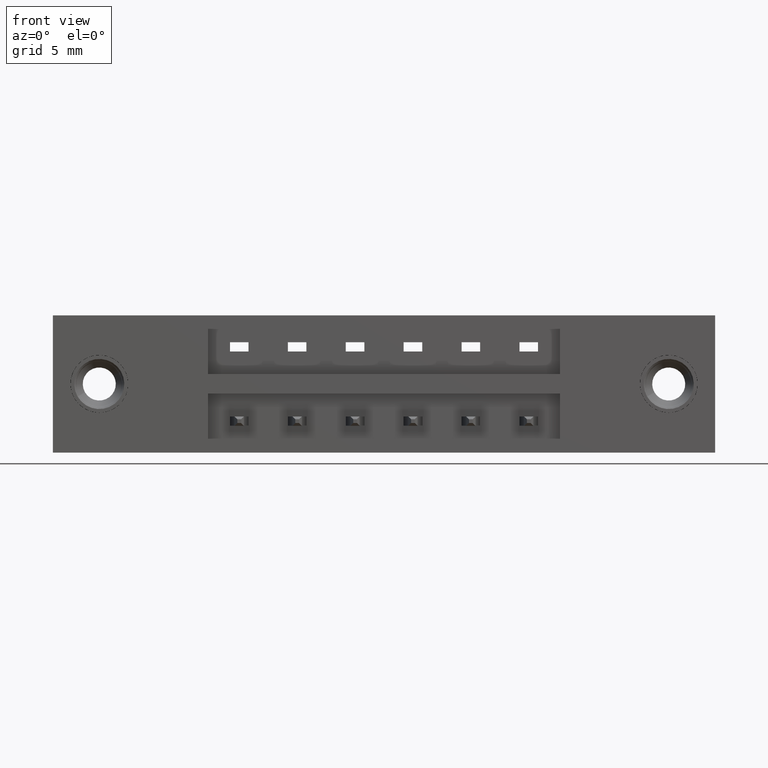
[diagram: clean part render]
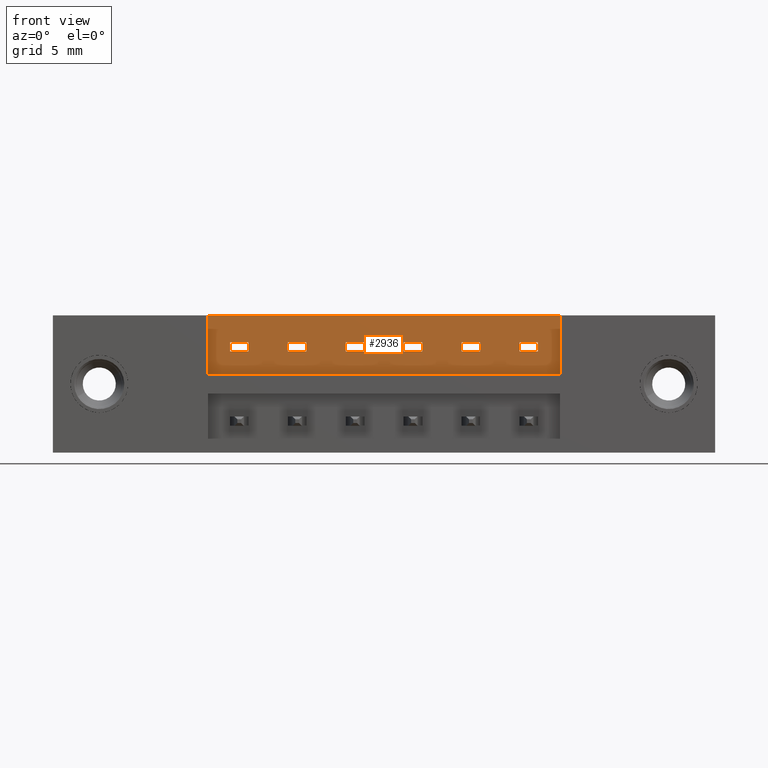
[diagram: same view with one face highlighted and labeled with its STEP entity id]
A machine part, front view. The second image highlights one B-rep face of the part: STEP entity #2936.
In plain terms, the highlighted planar face has unit normal (0, 1, 0).
Its self-contained STEP definition (entity closure, byte-faithful):
#14 = LINE ( 'NONE', #127, #7635 ) ;
#72 = ORIENTED_EDGE ( 'NONE', *, *, #3680, .T. ) ;
#105 = CARTESIAN_POINT ( 'NONE',  ( 0.6329999999999999000, 0.04999999999999998900, -0.07250000000000002300 ) ) ;
#111 = CARTESIAN_POINT ( 'NONE',  ( 1.256999999999999700, 0.04999999999999998900, -0.07250000000000002300 ) ) ;
#124 = DIRECTION ( 'NONE',  ( 0.0000000000000000000, 0.0000000000000000000, 1.000000000000000000 ) ) ;
#127 = CARTESIAN_POINT ( 'NONE',  ( 1.306999999999999700, 0.05000000000000000300, 0.0000000000000000000 ) ) ;
#180 = DIRECTION ( 'NONE',  ( 0.0000000000000000000, 0.0000000000000000000, 1.000000000000000000 ) ) ;
#183 = ORIENTED_EDGE ( 'NONE', *, *, #3490, .T. ) ;
#259 = VERTEX_POINT ( 'NONE', #8237 ) ;
#262 = VERTEX_POINT ( 'NONE', #6803 ) ;
#326 = ORIENTED_EDGE ( 'NONE', *, *, #6832, .T. ) ;
#365 = CARTESIAN_POINT ( 'NONE',  ( 1.366499999999999800, 0.05000000000000000300, 0.0000000000000000000 ) ) ;
#373 = DIRECTION ( 'NONE',  ( -1.000000000000000000, 0.0000000000000000000, 0.0000000000000000000 ) ) ;
#439 = ORIENTED_EDGE ( 'NONE', *, *, #5299, .T. ) ;
#529 = CARTESIAN_POINT ( 'NONE',  ( 1.151000000000000000, 0.04999999999999998900, -0.07250000000000002300 ) ) ;
#556 = ORIENTED_EDGE ( 'NONE', *, *, #5755, .T. ) ;
#563 = EDGE_CURVE ( 'NONE', #3507, #9533, #762, .T. ) ;
#613 = FACE_BOUND ( 'NONE', #9147, .T. ) ;
#623 = ORIENTED_EDGE ( 'NONE', *, *, #9014, .T. ) ;
#693 = VERTEX_POINT ( 'NONE', #529 ) ;
#698 = VECTOR ( 'NONE', #373, 39.37007874015748100 ) ;
#707 = LINE ( 'NONE', #9453, #2683 ) ;
#712 = CARTESIAN_POINT ( 'NONE',  ( 0.5269999999999999100, 0.05000000000000000300, -0.09750000000000011400 ) ) ;
#746 = EDGE_CURVE ( 'NONE', #5112, #7931, #9142, .T. ) ;
#762 = LINE ( 'NONE', #5799, #8353 ) ;
#791 = VERTEX_POINT ( 'NONE', #7319 ) ;
#792 = CARTESIAN_POINT ( 'NONE',  ( 1.366499999999999800, 0.05000000000000000300, -0.09750000000000005900 ) ) ;
#797 = CARTESIAN_POINT ( 'NONE',  ( 0.4769999999999998700, 0.05000000000000000300, 0.0000000000000000000 ) ) ;
#856 = FACE_BOUND ( 'NONE', #8426, .T. ) ;
#872 = CARTESIAN_POINT ( 'NONE',  ( 1.366499999999999800, 0.05000000000000000300, 0.0000000000000000000 ) ) ;
#915 = VERTEX_POINT ( 'NONE', #8555 ) ;
#1070 = ORIENTED_EDGE ( 'NONE', *, *, #6396, .T. ) ;
#1076 = EDGE_CURVE ( 'NONE', #8753, #8372, #6407, .T. ) ;
#1125 = EDGE_CURVE ( 'NONE', #6709, #7913, #14, .T. ) ;
#1188 = LINE ( 'NONE', #5717, #5372 ) ;
#1290 = CARTESIAN_POINT ( 'NONE',  ( 0.4174999999999999800, 0.05000000000000000300, -0.1585000000000000300 ) ) ;
#1293 = VERTEX_POINT ( 'NONE', #712 ) ;
#1307 = CARTESIAN_POINT ( 'NONE',  ( 0.8389999999999998600, 0.05000000000000000300, -0.09750000000000011400 ) ) ;
#1336 = DIRECTION ( 'NONE',  ( 0.0000000000000000000, 0.0000000000000000000, 1.000000000000000000 ) ) ;
#1462 = CARTESIAN_POINT ( 'NONE',  ( 0.4174999999999999800, 0.05000000000000000300, -0.1585000000000000300 ) ) ;
#1468 = DIRECTION ( 'NONE',  ( 1.000000000000000000, 0.0000000000000000000, 0.0000000000000000000 ) ) ;
#1476 = VECTOR ( 'NONE', #5142, 39.37007874015748100 ) ;
#1554 = VERTEX_POINT ( 'NONE', #3546 ) ;
#1556 = ORIENTED_EDGE ( 'NONE', *, *, #8209, .T. ) ;
#1604 = VERTEX_POINT ( 'NONE', #9329 ) ;
#1681 = VECTOR ( 'NONE', #7314, 39.37007874015748100 ) ;
#1705 = LINE ( 'NONE', #4399, #1476 ) ;
#1857 = EDGE_CURVE ( 'NONE', #9533, #7311, #2494, .T. ) ;
#1893 = EDGE_CURVE ( 'NONE', #7931, #3624, #5979, .T. ) ;
#1939 = DIRECTION ( 'NONE',  ( -1.000000000000000000, 0.0000000000000000000, 0.0000000000000000000 ) ) ;
#1949 = CARTESIAN_POINT ( 'NONE',  ( 1.151000000000000000, 0.05000000000000000300, -0.09750000000000011400 ) ) ;
#2041 = VECTOR ( 'NONE', #180, 39.37007874015748100 ) ;
#2073 = LINE ( 'NONE', #1290, #7675 ) ;
#2094 = EDGE_CURVE ( 'NONE', #791, #5496, #4370, .T. ) ;
#2129 = LINE ( 'NONE', #6575, #7736 ) ;
#2166 = DIRECTION ( 'NONE',  ( 1.000000000000000000, 0.0000000000000000000, 0.0000000000000000000 ) ) ;
#2185 = LINE ( 'NONE', #1462, #9497 ) ;
#2201 = CARTESIAN_POINT ( 'NONE',  ( 1.366499999999999800, 0.05000000000000000300, -0.07250000000000002300 ) ) ;
#2218 = EDGE_CURVE ( 'NONE', #5496, #7913, #1705, .T. ) ;
#2222 = DIRECTION ( 'NONE',  ( -1.000000000000000000, 0.0000000000000000000, 0.0000000000000000000 ) ) ;
#2378 = ORIENTED_EDGE ( 'NONE', *, *, #5349, .T. ) ;
#2381 = VECTOR ( 'NONE', #8131, 39.37007874015748100 ) ;
#2386 = LINE ( 'NONE', #4024, #4373 ) ;
#2494 = LINE ( 'NONE', #6574, #6188 ) ;
#2564 = ORIENTED_EDGE ( 'NONE', *, *, #746, .T. ) ;
#2594 = FACE_BOUND ( 'NONE', #3348, .T. ) ;
#2674 = LINE ( 'NONE', #3345, #698 ) ;
#2683 = VECTOR ( 'NONE', #2166, 39.37007874015748100 ) ;
#2795 = DIRECTION ( 'NONE',  ( 1.000000000000000000, 0.0000000000000000000, 0.0000000000000000000 ) ) ;
#2911 = ORIENTED_EDGE ( 'NONE', *, *, #1857, .T. ) ;
#2932 = EDGE_CURVE ( 'NONE', #1293, #262, #8445, .T. ) ;
#2936 = ADVANCED_FACE ( 'NONE', ( #6926, #4580, #856, #4814, #2594, #613, #8196 ), #5609, .F. ) ;
#2978 = CARTESIAN_POINT ( 'NONE',  ( 0.7889999999999998100, 0.05000000000000000300, 0.0000000000000000000 ) ) ;
#3157 = DIRECTION ( 'NONE',  ( 0.0000000000000000000, 0.0000000000000000000, 1.000000000000000000 ) ) ;
#3163 = VECTOR ( 'NONE', #1468, 39.37007874015748100 ) ;
#3214 = CARTESIAN_POINT ( 'NONE',  ( 1.366499999999999800, 0.05000000000000000300, -0.09750000000000005900 ) ) ;
#3287 = CARTESIAN_POINT ( 'NONE',  ( 0.9449999999999998400, 0.04999999999999998900, -0.07250000000000002300 ) ) ;
#3293 = DIRECTION ( 'NONE',  ( -1.000000000000000000, 0.0000000000000000000, 0.0000000000000000000 ) ) ;
#3345 = CARTESIAN_POINT ( 'NONE',  ( 1.366499999999999800, 0.05000000000000000300, -0.09750000000000005900 ) ) ;
#3348 = EDGE_LOOP ( 'NONE', ( #4023, #8974, #8025, #7341 ) ) ;
#3437 = ORIENTED_EDGE ( 'NONE', *, *, #2218, .T. ) ;
#3463 = EDGE_CURVE ( 'NONE', #1604, #1554, #7031, .T. ) ;
#3490 = EDGE_CURVE ( 'NONE', #3624, #693, #5384, .T. ) ;
#3507 = VERTEX_POINT ( 'NONE', #8014 ) ;
#3546 = CARTESIAN_POINT ( 'NONE',  ( 0.8389999999999998600, 0.04999999999999998900, -0.07250000000000002300 ) ) ;
#3557 = ORIENTED_EDGE ( 'NONE', *, *, #563, .T. ) ;
#3624 = VERTEX_POINT ( 'NONE', #7470 ) ;
#3642 = CARTESIAN_POINT ( 'NONE',  ( 0.4769999999999999200, 0.05000000000000001000, -0.09750000000000005900 ) ) ;
#3680 = EDGE_CURVE ( 'NONE', #7880, #8981, #9330, .T. ) ;
#3718 = LINE ( 'NONE', #2978, #9538 ) ;
#3774 = VECTOR ( 'NONE', #3293, 39.37007874015748100 ) ;
#3775 = VECTOR ( 'NONE', #9498, 39.37007874015748100 ) ;
#3872 = VERTEX_POINT ( 'NONE', #4130 ) ;
#3954 = EDGE_CURVE ( 'NONE', #7311, #5217, #1188, .T. ) ;
#4023 = ORIENTED_EDGE ( 'NONE', *, *, #6556, .T. ) ;
#4024 = CARTESIAN_POINT ( 'NONE',  ( 0.6829999999999999400, 0.05000000000000000300, 0.0000000000000000000 ) ) ;
#4081 = EDGE_CURVE ( 'NONE', #3507, #5217, #2129, .T. ) ;
#4130 = CARTESIAN_POINT ( 'NONE',  ( 0.6829999999999999400, 0.04999999999999998900, -0.07250000000000002300 ) ) ;
#4370 = LINE ( 'NONE', #8031, #2381 ) ;
#4373 = VECTOR ( 'NONE', #9118, 39.37007874015748100 ) ;
#4399 = CARTESIAN_POINT ( 'NONE',  ( 1.366499999999999800, 0.05000000000000000300, -0.07250000000000002300 ) ) ;
#4430 = LINE ( 'NONE', #6334, #6134 ) ;
#4504 = DIRECTION ( 'NONE',  ( 0.0000000000000000000, 0.0000000000000000000, 1.000000000000000000 ) ) ;
#4526 = ORIENTED_EDGE ( 'NONE', *, *, #4081, .F. ) ;
#4580 = FACE_BOUND ( 'NONE', #7125, .T. ) ;
#4740 = ORIENTED_EDGE ( 'NONE', *, *, #1125, .F. ) ;
#4814 = FACE_BOUND ( 'NONE', #7652, .T. ) ;
#4827 = VECTOR ( 'NONE', #8835, 39.37007874015748100 ) ;
#4870 = LINE ( 'NONE', #7529, #6555 ) ;
#4953 = CARTESIAN_POINT ( 'NONE',  ( 0.4174999999999999800, 0.05000000000000000300, 0.0000000000000000000 ) ) ;
#4980 = DIRECTION ( 'NONE',  ( 1.000000000000000000, 0.0000000000000000000, 0.0000000000000000000 ) ) ;
#5009 = CARTESIAN_POINT ( 'NONE',  ( 0.6329999999999999000, 0.05000000000000001000, -0.09750000000000005900 ) ) ;
#5078 = ORIENTED_EDGE ( 'NONE', *, *, #5395, .T. ) ;
#5112 = VERTEX_POINT ( 'NONE', #1949 ) ;
#5142 = DIRECTION ( 'NONE',  ( 1.000000000000000000, 0.0000000000000000000, 0.0000000000000000000 ) ) ;
#5187 = VERTEX_POINT ( 'NONE', #1307 ) ;
#5203 = CARTESIAN_POINT ( 'NONE',  ( 1.366499999999999800, 0.05000000000000000300, -0.07250000000000002300 ) ) ;
#5217 = VERTEX_POINT ( 'NONE', #7886 ) ;
#5261 = DIRECTION ( 'NONE',  ( 0.0000000000000000000, -0.0000000000000000000, 1.000000000000000000 ) ) ;
#5299 = EDGE_CURVE ( 'NONE', #9283, #262, #707, .T. ) ;
#5349 = EDGE_CURVE ( 'NONE', #915, #1604, #3718, .T. ) ;
#5372 = VECTOR ( 'NONE', #4980, 39.37007874015748100 ) ;
#5384 = LINE ( 'NONE', #6585, #3163 ) ;
#5395 = EDGE_CURVE ( 'NONE', #6296, #9283, #7132, .T. ) ;
#5421 = EDGE_LOOP ( 'NONE', ( #72, #623, #1556, #326 ) ) ;
#5496 = VERTEX_POINT ( 'NONE', #111 ) ;
#5515 = DIRECTION ( 'NONE',  ( -1.000000000000000000, -0.0000000000000000000, -0.0000000000000000000 ) ) ;
#5554 = CARTESIAN_POINT ( 'NONE',  ( 0.6329999999999999000, 0.05000000000000000300, 0.0000000000000000000 ) ) ;
#5609 = PLANE ( 'NONE',  #8159 ) ;
#5702 = EDGE_CURVE ( 'NONE', #5187, #915, #2674, .T. ) ;
#5717 = CARTESIAN_POINT ( 'NONE',  ( 1.366499999999999800, 0.05000000000000000300, -0.07250000000000002300 ) ) ;
#5755 = EDGE_CURVE ( 'NONE', #1293, #6296, #4430, .T. ) ;
#5799 = CARTESIAN_POINT ( 'NONE',  ( 1.366499999999999800, 0.05000000000000000300, -0.09750000000000005900 ) ) ;
#5882 = DIRECTION ( 'NONE',  ( 0.0000000000000000000, 0.0000000000000000000, 1.000000000000000000 ) ) ;
#5979 = LINE ( 'NONE', #6072, #2041 ) ;
#6025 = VECTOR ( 'NONE', #6666, 39.37007874015748100 ) ;
#6072 = CARTESIAN_POINT ( 'NONE',  ( 1.101000000000000000, 0.05000000000000000300, 0.0000000000000000000 ) ) ;
#6073 = CARTESIAN_POINT ( 'NONE',  ( 1.366499999999999800, 0.05000000000000000300, -0.1585000000000000300 ) ) ;
#6091 = VECTOR ( 'NONE', #5515, 39.37007874015748100 ) ;
#6109 = CARTESIAN_POINT ( 'NONE',  ( 0.9449999999999998400, 0.05000000000000001000, -0.09750000000000005900 ) ) ;
#6117 = ORIENTED_EDGE ( 'NONE', *, *, #9481, .F. ) ;
#6134 = VECTOR ( 'NONE', #1939, 39.37007874015748100 ) ;
#6188 = VECTOR ( 'NONE', #8055, 39.37007874015748100 ) ;
#6236 = VERTEX_POINT ( 'NONE', #4953 ) ;
#6290 = LINE ( 'NONE', #8956, #7753 ) ;
#6296 = VERTEX_POINT ( 'NONE', #3642 ) ;
#6299 = CARTESIAN_POINT ( 'NONE',  ( 1.306999999999999700, 0.05000000000000000300, -0.09750000000000011400 ) ) ;
#6334 = CARTESIAN_POINT ( 'NONE',  ( 1.366499999999999800, 0.05000000000000000300, -0.09750000000000005900 ) ) ;
#6396 = EDGE_CURVE ( 'NONE', #6709, #791, #8141, .T. ) ;
#6407 = LINE ( 'NONE', #5554, #8091 ) ;
#6497 = VECTOR ( 'NONE', #7127, 39.37007874015748100 ) ;
#6525 = EDGE_LOOP ( 'NONE', ( #1070, #7130, #3437, #4740 ) ) ;
#6526 = DIRECTION ( 'NONE',  ( 0.0000000000000000000, 0.0000000000000000000, 1.000000000000000000 ) ) ;
#6536 = CARTESIAN_POINT ( 'NONE',  ( 0.4769999999999999200, 0.04999999999999998900, -0.07250000000000002300 ) ) ;
#6555 = VECTOR ( 'NONE', #8306, 39.37007874015748100 ) ;
#6556 = EDGE_CURVE ( 'NONE', #8627, #8753, #4870, .T. ) ;
#6558 = ORIENTED_EDGE ( 'NONE', *, *, #1893, .T. ) ;
#6574 = CARTESIAN_POINT ( 'NONE',  ( 0.9449999999999998400, 0.05000000000000000300, 0.0000000000000000000 ) ) ;
#6575 = CARTESIAN_POINT ( 'NONE',  ( 0.9949999999999998800, 0.05000000000000000300, 0.0000000000000000000 ) ) ;
#6585 = CARTESIAN_POINT ( 'NONE',  ( 1.366499999999999800, 0.05000000000000000300, -0.07250000000000002300 ) ) ;
#6666 = DIRECTION ( 'NONE',  ( -1.000000000000000000, 0.0000000000000000000, 0.0000000000000000000 ) ) ;
#6675 = ORIENTED_EDGE ( 'NONE', *, *, #3463, .T. ) ;
#6709 = VERTEX_POINT ( 'NONE', #6299 ) ;
#6718 = LINE ( 'NONE', #5203, #4827 ) ;
#6803 = CARTESIAN_POINT ( 'NONE',  ( 0.5269999999999999100, 0.04999999999999998900, -0.07250000000000002300 ) ) ;
#6832 = EDGE_CURVE ( 'NONE', #259, #7880, #2073, .T. ) ;
#6850 = ORIENTED_EDGE ( 'NONE', *, *, #8878, .F. ) ;
#6881 = CARTESIAN_POINT ( 'NONE',  ( 1.366499999999999800, 0.05000000000000000300, -0.1585000000000000300 ) ) ;
#6926 = FACE_BOUND ( 'NONE', #6525, .T. ) ;
#7003 = CARTESIAN_POINT ( 'NONE',  ( 0.6829999999999999400, 0.05000000000000000300, -0.09750000000000011400 ) ) ;
#7031 = LINE ( 'NONE', #2201, #1681 ) ;
#7125 = EDGE_LOOP ( 'NONE', ( #2564, #6558, #183, #6117 ) ) ;
#7127 = DIRECTION ( 'NONE',  ( 0.0000000000000000000, 0.0000000000000000000, 1.000000000000000000 ) ) ;
#7130 = ORIENTED_EDGE ( 'NONE', *, *, #2094, .T. ) ;
#7132 = LINE ( 'NONE', #797, #9088 ) ;
#7311 = VERTEX_POINT ( 'NONE', #3287 ) ;
#7314 = DIRECTION ( 'NONE',  ( 1.000000000000000000, 0.0000000000000000000, 0.0000000000000000000 ) ) ;
#7319 = CARTESIAN_POINT ( 'NONE',  ( 1.256999999999999700, 0.05000000000000001000, -0.09750000000000005900 ) ) ;
#7341 = ORIENTED_EDGE ( 'NONE', *, *, #9009, .F. ) ;
#7353 = DIRECTION ( 'NONE',  ( 0.0000000000000000000, 0.0000000000000000000, 1.000000000000000000 ) ) ;
#7388 = VECTOR ( 'NONE', #3157, 39.37007874015748100 ) ;
#7457 = CARTESIAN_POINT ( 'NONE',  ( 0.5269999999999999100, 0.05000000000000000300, 0.0000000000000000000 ) ) ;
#7470 = CARTESIAN_POINT ( 'NONE',  ( 1.101000000000000000, 0.04999999999999998900, -0.07250000000000002300 ) ) ;
#7518 = CARTESIAN_POINT ( 'NONE',  ( 0.4174999999999999800, 0.05000000000000000300, 0.0000000000000000000 ) ) ;
#7529 = CARTESIAN_POINT ( 'NONE',  ( 1.366499999999999800, 0.05000000000000000300, -0.09750000000000005900 ) ) ;
#7620 = ORIENTED_EDGE ( 'NONE', *, *, #2932, .F. ) ;
#7635 = VECTOR ( 'NONE', #1336, 39.37007874015748100 ) ;
#7648 = LINE ( 'NONE', #8776, #3775 ) ;
#7652 = EDGE_LOOP ( 'NONE', ( #8681, #2378, #6675, #6850 ) ) ;
#7675 = VECTOR ( 'NONE', #2795, 39.37007874015748100 ) ;
#7692 = CARTESIAN_POINT ( 'NONE',  ( 1.101000000000000000, 0.05000000000000001000, -0.09750000000000005900 ) ) ;
#7736 = VECTOR ( 'NONE', #5882, 39.37007874015748100 ) ;
#7753 = VECTOR ( 'NONE', #124, 39.37007874015748100 ) ;
#7880 = VERTEX_POINT ( 'NONE', #6881 ) ;
#7886 = CARTESIAN_POINT ( 'NONE',  ( 0.9949999999999998800, 0.04999999999999998900, -0.07250000000000002300 ) ) ;
#7913 = VERTEX_POINT ( 'NONE', #8415 ) ;
#7931 = VERTEX_POINT ( 'NONE', #7692 ) ;
#7992 = LINE ( 'NONE', #7518, #6091 ) ;
#8014 = CARTESIAN_POINT ( 'NONE',  ( 0.9949999999999998800, 0.05000000000000000300, -0.09750000000000011400 ) ) ;
#8025 = ORIENTED_EDGE ( 'NONE', *, *, #9370, .T. ) ;
#8031 = CARTESIAN_POINT ( 'NONE',  ( 1.256999999999999700, 0.05000000000000000300, 0.0000000000000000000 ) ) ;
#8055 = DIRECTION ( 'NONE',  ( 0.0000000000000000000, 0.0000000000000000000, 1.000000000000000000 ) ) ;
#8089 = DIRECTION ( 'NONE',  ( 0.0000000000000000000, 1.000000000000000000, 0.0000000000000000000 ) ) ;
#8091 = VECTOR ( 'NONE', #6526, 39.37007874015748100 ) ;
#8131 = DIRECTION ( 'NONE',  ( 0.0000000000000000000, 0.0000000000000000000, 1.000000000000000000 ) ) ;
#8141 = LINE ( 'NONE', #792, #6025 ) ;
#8159 = AXIS2_PLACEMENT_3D ( 'NONE', #365, #8089, #5261 ) ;
#8196 = FACE_OUTER_BOUND ( 'NONE', #5421, .T. ) ;
#8209 = EDGE_CURVE ( 'NONE', #6236, #259, #2185, .T. ) ;
#8237 = CARTESIAN_POINT ( 'NONE',  ( 0.4174999999999999800, 0.05000000000000000300, -0.1585000000000000300 ) ) ;
#8306 = DIRECTION ( 'NONE',  ( -1.000000000000000000, 0.0000000000000000000, 0.0000000000000000000 ) ) ;
#8353 = VECTOR ( 'NONE', #2222, 39.37007874015748100 ) ;
#8372 = VERTEX_POINT ( 'NONE', #105 ) ;
#8415 = CARTESIAN_POINT ( 'NONE',  ( 1.306999999999999700, 0.04999999999999998900, -0.07250000000000002300 ) ) ;
#8426 = EDGE_LOOP ( 'NONE', ( #3557, #2911, #8664, #4526 ) ) ;
#8445 = LINE ( 'NONE', #7457, #6497 ) ;
#8555 = CARTESIAN_POINT ( 'NONE',  ( 0.7889999999999998100, 0.05000000000000001000, -0.09750000000000005900 ) ) ;
#8627 = VERTEX_POINT ( 'NONE', #7003 ) ;
#8664 = ORIENTED_EDGE ( 'NONE', *, *, #3954, .T. ) ;
#8681 = ORIENTED_EDGE ( 'NONE', *, *, #5702, .T. ) ;
#8753 = VERTEX_POINT ( 'NONE', #5009 ) ;
#8776 = CARTESIAN_POINT ( 'NONE',  ( 0.8389999999999998600, 0.05000000000000000300, 0.0000000000000000000 ) ) ;
#8835 = DIRECTION ( 'NONE',  ( 1.000000000000000000, 0.0000000000000000000, 0.0000000000000000000 ) ) ;
#8878 = EDGE_CURVE ( 'NONE', #5187, #1554, #7648, .T. ) ;
#8956 = CARTESIAN_POINT ( 'NONE',  ( 1.151000000000000000, 0.05000000000000000300, 0.0000000000000000000 ) ) ;
#8974 = ORIENTED_EDGE ( 'NONE', *, *, #1076, .T. ) ;
#8981 = VERTEX_POINT ( 'NONE', #872 ) ;
#9009 = EDGE_CURVE ( 'NONE', #8627, #3872, #2386, .T. ) ;
#9014 = EDGE_CURVE ( 'NONE', #8981, #6236, #7992, .T. ) ;
#9088 = VECTOR ( 'NONE', #4504, 39.37007874015748100 ) ;
#9118 = DIRECTION ( 'NONE',  ( 0.0000000000000000000, 0.0000000000000000000, 1.000000000000000000 ) ) ;
#9142 = LINE ( 'NONE', #3214, #3774 ) ;
#9147 = EDGE_LOOP ( 'NONE', ( #556, #5078, #439, #7620 ) ) ;
#9283 = VERTEX_POINT ( 'NONE', #6536 ) ;
#9329 = CARTESIAN_POINT ( 'NONE',  ( 0.7889999999999998100, 0.04999999999999998900, -0.07250000000000002300 ) ) ;
#9330 = LINE ( 'NONE', #6073, #7388 ) ;
#9370 = EDGE_CURVE ( 'NONE', #8372, #3872, #6718, .T. ) ;
#9453 = CARTESIAN_POINT ( 'NONE',  ( 1.366499999999999800, 0.05000000000000000300, -0.07250000000000002300 ) ) ;
#9481 = EDGE_CURVE ( 'NONE', #5112, #693, #6290, .T. ) ;
#9497 = VECTOR ( 'NONE', #9510, 39.37007874015748100 ) ;
#9498 = DIRECTION ( 'NONE',  ( 0.0000000000000000000, 0.0000000000000000000, 1.000000000000000000 ) ) ;
#9510 = DIRECTION ( 'NONE',  ( -0.0000000000000000000, -0.0000000000000000000, -1.000000000000000000 ) ) ;
#9533 = VERTEX_POINT ( 'NONE', #6109 ) ;
#9538 = VECTOR ( 'NONE', #7353, 39.37007874015748100 ) ;